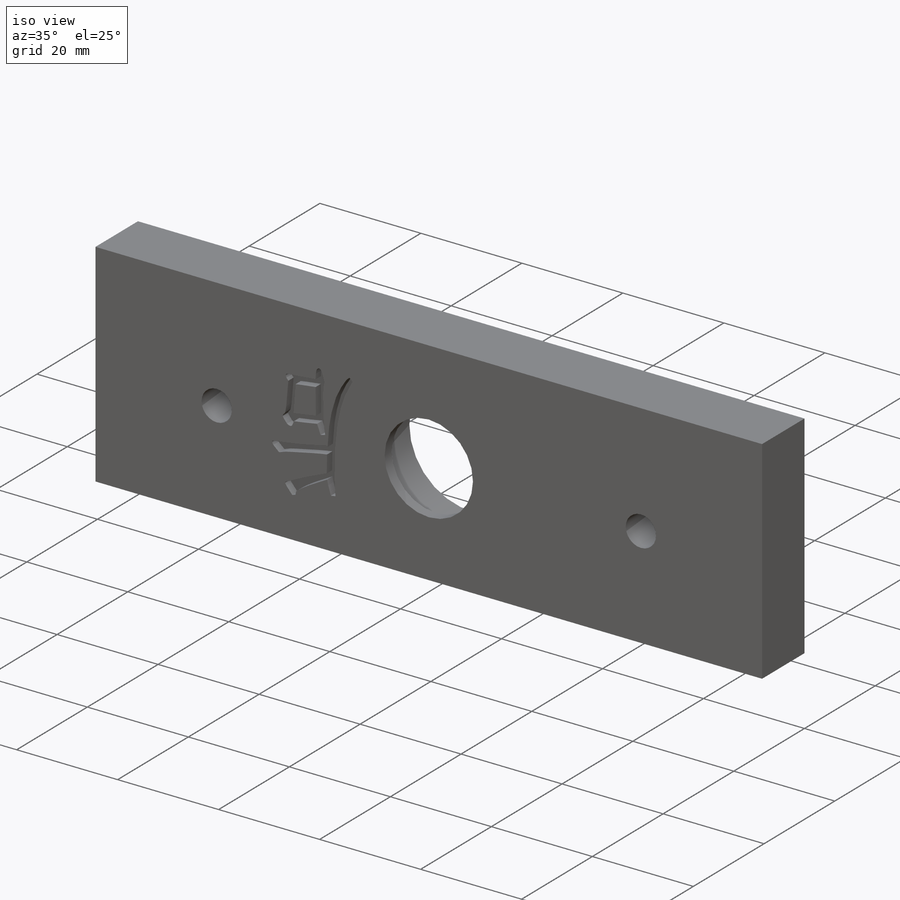
[diagram: iso view]
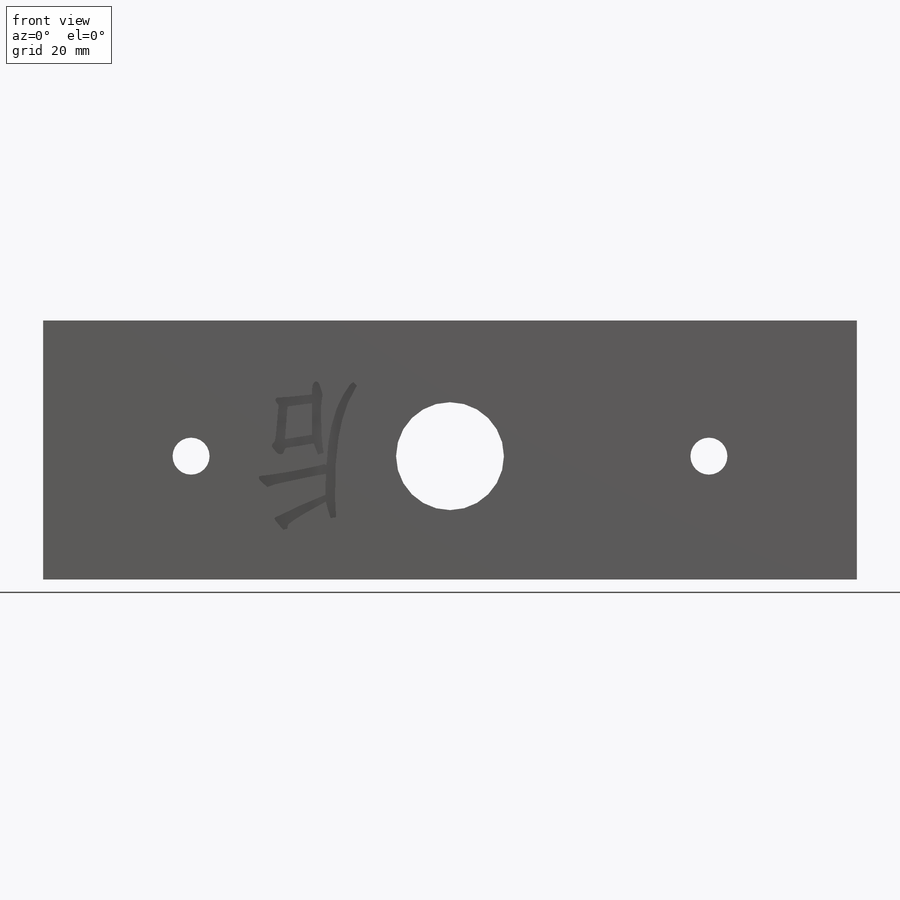
[diagram: front view]
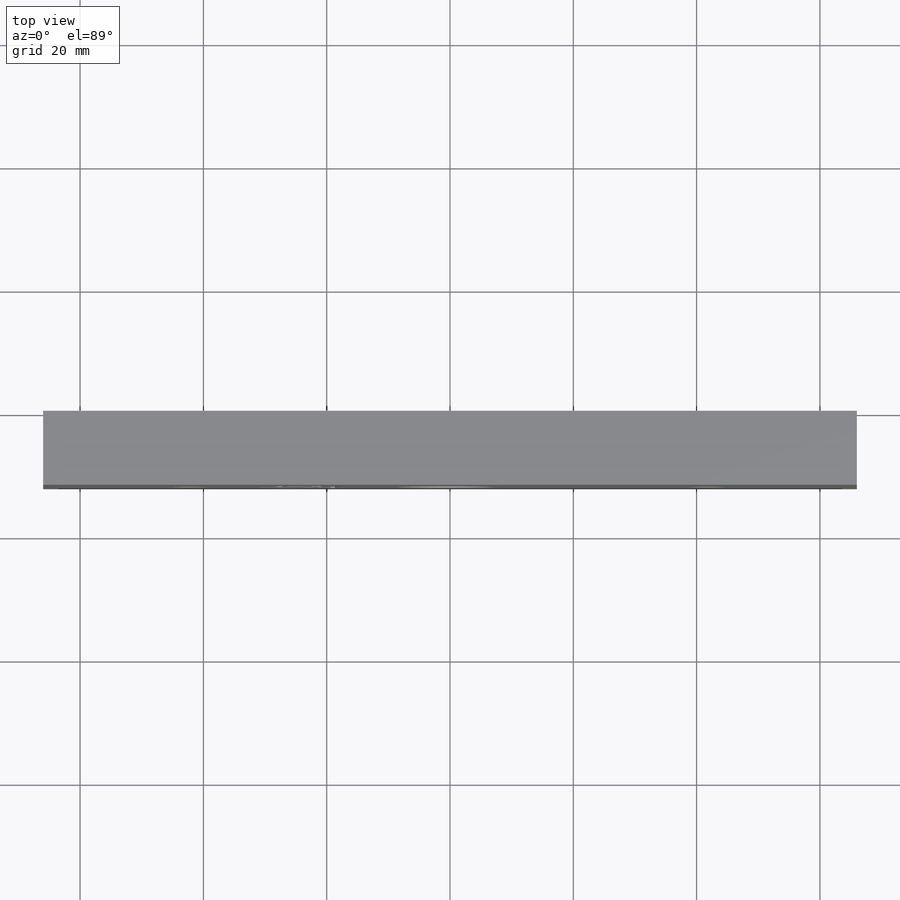
[diagram: top view]
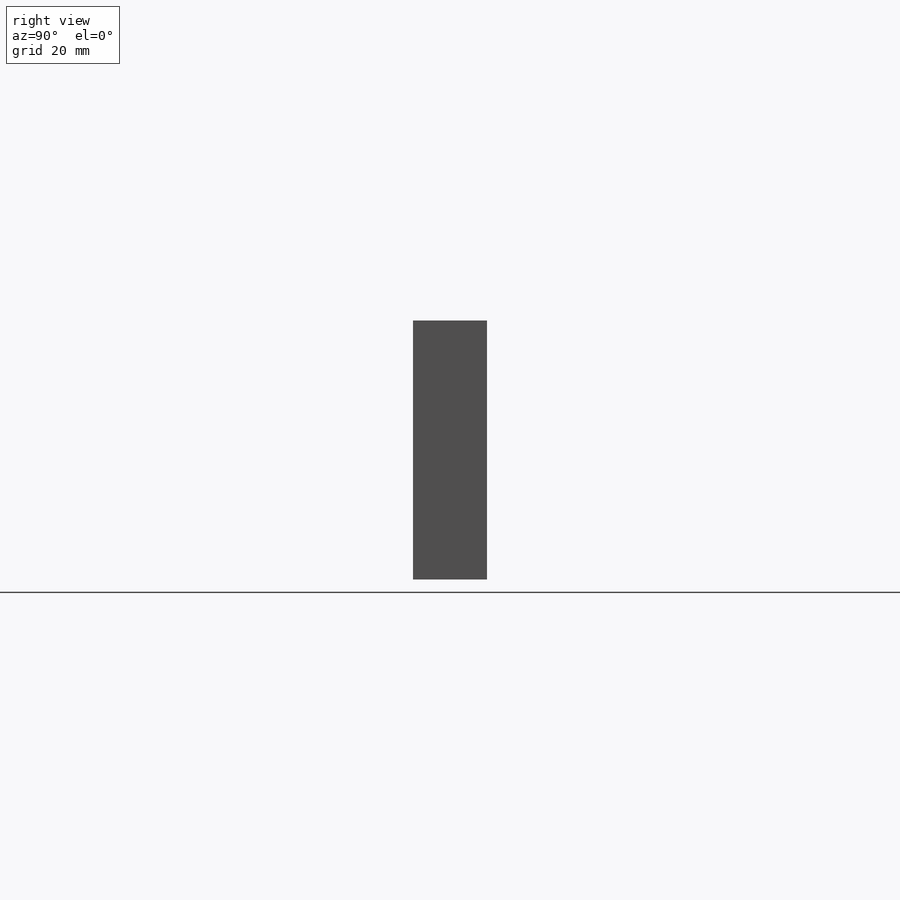
[diagram: right view]
SOLIDWORKS PART (.sldprt)
format: sldprt  version: not decoded by parser v0  size: 309,760 bytes
history: native  units: mm
features: sketch x6, cut_extrude x5, plane x3, material x1, extrude x1 (+10 scaffold rows collapsed)
feature tree (26):
  scaffold x10  (default folders/planes/origin — collapsed)
  material  "材质 <未指定>"
  plane  "前视基准面"
  plane  "上视基准面"
  plane  "右视基准面"
  sketch  "草图1"  dims[c1.D1=42.0mm c1.D2=132.0mm c1.D3=66.0mm c1.D4=20.0mm c1.D5=~30.89572mm c2.D4=20.0mm]
  extrude  "凸台-拉伸1"  Depth=12mm
  sketch  "草图2"  dims[D1=24.5mm D2=22.0mm]
  cut_extrude  "切除-拉伸1"  Depth=10mm
  sketch  "草图3"  dims[c1.D1=8.2mm c1.D2=8.2mm c1.D3=8.2mm c1.D5=8.2mm c1.D6=8.2mm c2.D3=42.0mm c2.D4=42.0mm c2.D5=20.0mm c2.D6=20.0mm]
  cut_extrude  "切除-拉伸2"  Depth=2mm
  sketch  "草图4"  dims[D1=17.5mm]
  cut_extrude  "切除-拉伸3"  Depth=6mm
  sketch  "草图5"  dims[D1=6.0mm D2=6.0mm]
  cut_extrude  "切除-拉伸4"  Depth=10mm
  sketch  "草图6"
  cut_extrude  "切除-拉伸5"  Depth=1.5mm
decode coverage: 11 of 12 modeling features carry decoded parameters
note: ~ marks probable driven/reference dimensions
note: suppression state not decoded; provenance and decode notes live in map.json
